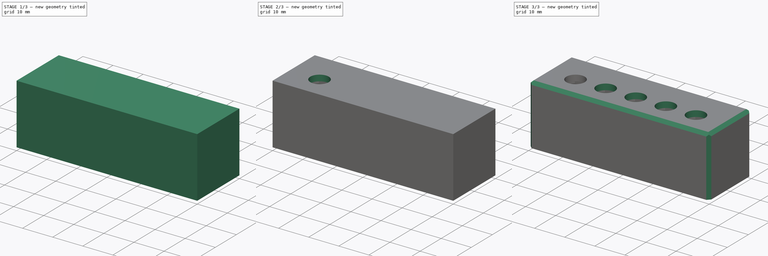
[diagram: build sequence overview — one tinted view per stage of 3, left to right]
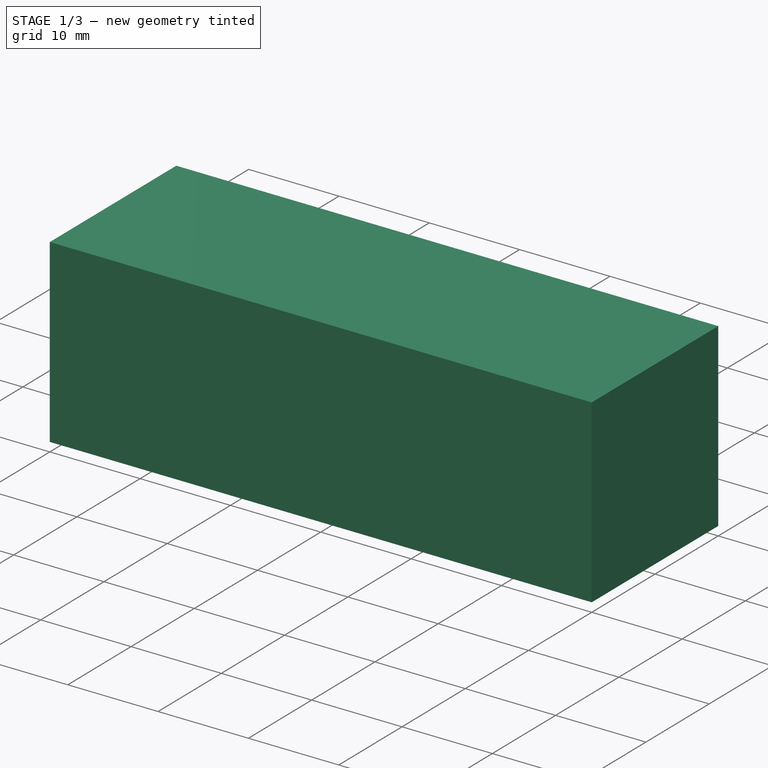
[diagram: stage 1 of 3 — iso view after this stage's code; geometry added in this stage tinted green]
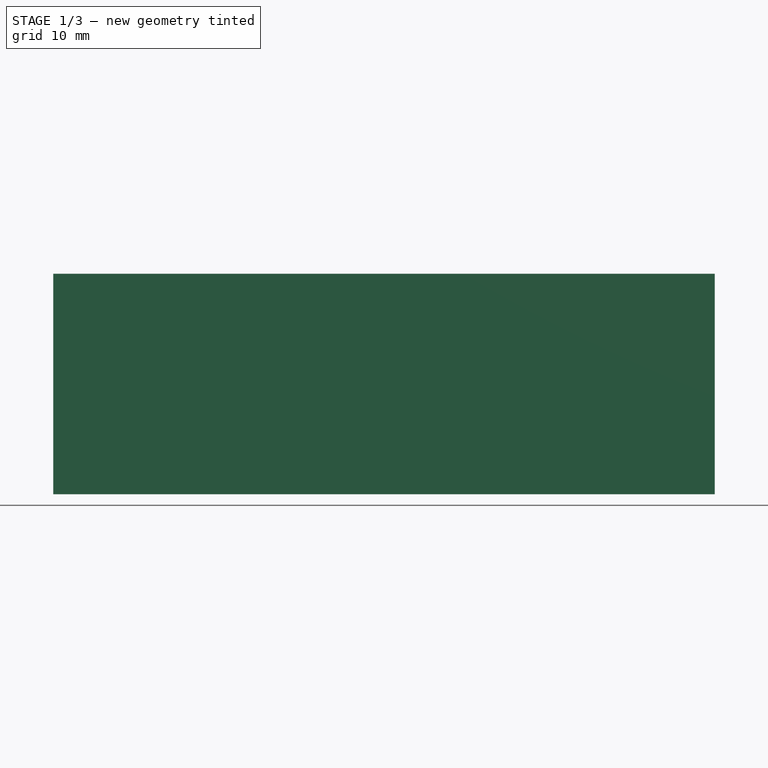
[diagram: stage 1 of 3 — front view after this stage's code; geometry added in this stage tinted green]
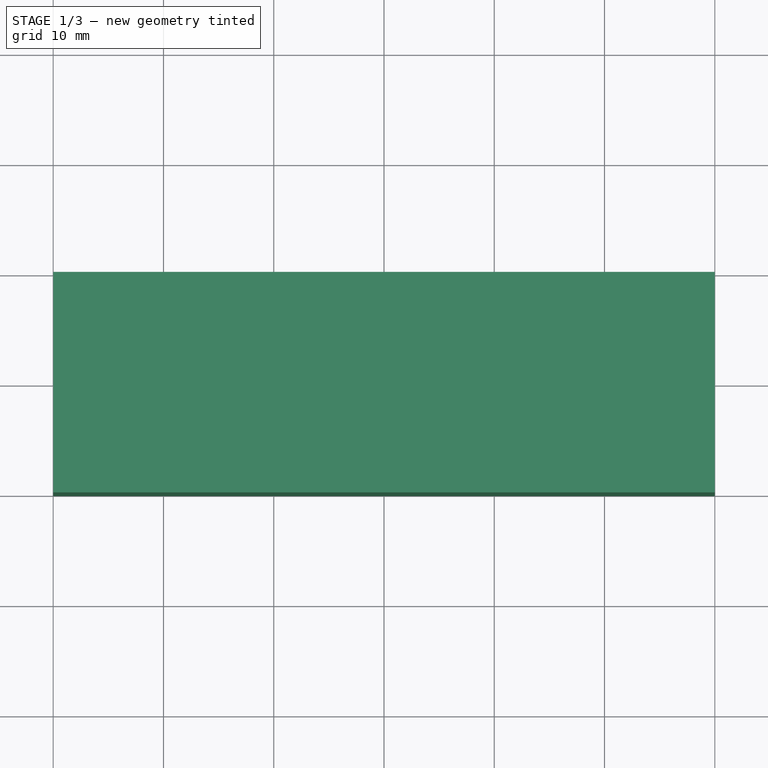
[diagram: stage 1 of 3 — top view after this stage's code; geometry added in this stage tinted green]
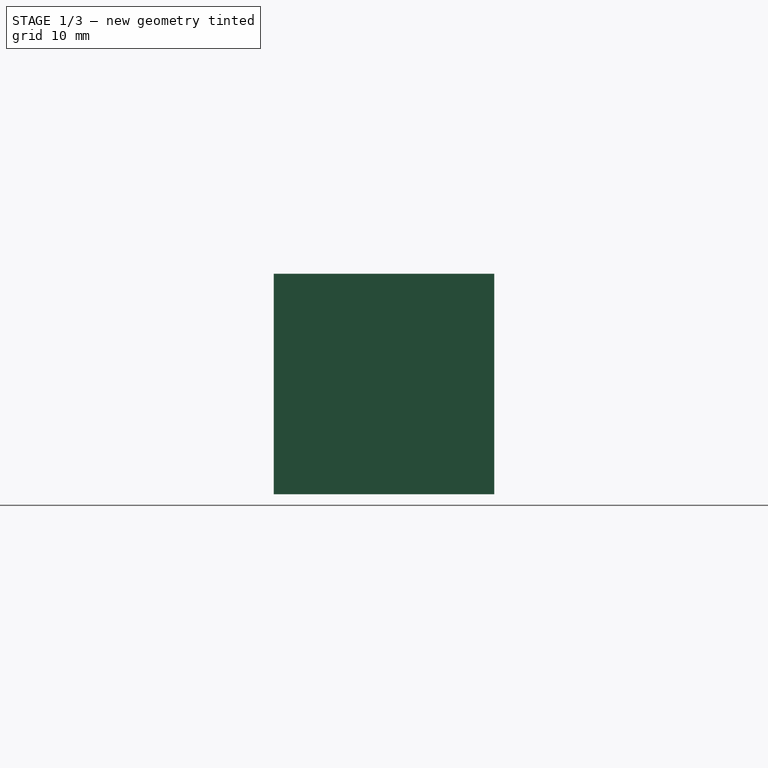
[diagram: stage 1 of 3 — right view after this stage's code; geometry added in this stage tinted green]
FCSTD DOCUMENT  (FreeCAD 0.21R33771 (Git))
Label: probe-jack-connector-bracket
License: All rights reserved
LicenseURL: https://en.wikipedia.org/wiki/All_rights_reserved
objects: Sketcher::SketchObject×5, PartDesign::Pocket×3, PartDesign::LinearPattern×2, PartDesign::Chamfer×2, PartDesign::Pad×1, PartDesign::Body×1, App::Part×1
note: 20 computed .brp shape members not serialized (recipe doc carries the construction recipe); baked Part::Feature solids carry a one-line shape summary decoded from their .brp

FEATURE [Sketcher::SketchObject] Sketch  label="MasterSketch"
  FullyConstrained = true
  MapMode = 5
  Support = -> [XY_Plane001]
  sketch-geometry (17):
    g0: LineSegment StartX=-30 StartY=-10 StartZ=0 EndX=30 EndY=-10 EndZ=0
    g1: LineSegment StartX=30 StartY=-10 StartZ=0 EndX=30 EndY=10 EndZ=0
    g2: LineSegment StartX=30 StartY=10 StartZ=0 EndX=-30 EndY=10 EndZ=0
    g3: LineSegment StartX=-30 StartY=10 StartZ=0 EndX=-30 EndY=-10 EndZ=0
    g4: GeomPoint X=-20 Y=-2 Z=0
    g5: Circle CenterX=-20 CenterY=-2 CenterZ=0 NormalX=0 NormalY=0 NormalZ=1 AngleXU=0 Radius=3
    g6: LineSegment StartX=-24.5 StartY=2.1 StartZ=0 EndX=-15.5 EndY=2.1 EndZ=0
    g7: LineSegment StartX=-15.5 StartY=2.1 StartZ=0 EndX=-15.5 EndY=-8 EndZ=0
    g8: LineSegment StartX=-15.5 StartY=-8 StartZ=0 EndX=-24.5 EndY=-8 EndZ=0
    g9: LineSegment StartX=-24.5 StartY=-8 StartZ=0 EndX=-24.5 EndY=2.1 EndZ=0
    g10: LineSegment StartX=-24.5 StartY=2.1 StartZ=0 EndX=-20 EndY=-2 EndZ=0
    g11: LineSegment StartX=-20 StartY=-2 StartZ=0 EndX=-15.5 EndY=2.1 EndZ=0
    g12: Circle CenterX=-20 CenterY=-2 CenterZ=0 NormalX=0 NormalY=0 NormalZ=1 AngleXU=0 Radius=3.8
    g13: LineSegment StartX=-22.3324 StartY=1 StartZ=0 EndX=-17.6676 EndY=1 EndZ=0
    g14: LineSegment StartX=-22.3324 StartY=-5 StartZ=0 EndX=-17.6676 EndY=-5 EndZ=0
    g15: ArcOfCircle CenterX=-20 CenterY=-2 CenterZ=0 NormalX=0 NormalY=0 NormalZ=1 AngleXU=0 Radius=3.8 StartAngle=2.23164 EndAngle=4.05154
    g16: ArcOfCircle CenterX=-20 CenterY=-2 CenterZ=0 NormalX=0 NormalY=0 NormalZ=1 AngleXU=0 Radius=3.8 StartAngle=5.37323 EndAngle=7.19314
  constraints (47):
    c: Coincident(g0,g1)
    c: Coincident(g1,g2)
    c: Coincident(g2,g3)
    c: Coincident(g3,g0)
    c: Horizontal(g0)
    c: Horizontal(g2)
    c: Vertical(g1)
    c: Vertical(g3)
    c: Symmetric(g0,g1,g-1)
    c: DistanceY(g1,g1) = 20
    c: DistanceX(g0,g0) = 60
    c: Distance(g4,g3) = 10
    c: Coincident(g5,g4)
    c: Diameter(g5) = 6
    c: Coincident(g6,g7)
    c: Coincident(g7,g8)
    c: Coincident(g8,g9)
    c: Coincident(g9,g6)
    c: Horizontal(g6)
    c: Horizontal(g8)
    c: Vertical(g7)
    c: Vertical(g9)
    c: Distance(g5,g6) = 4.1
    c: Distance(g5,g8) = 6
    c: Distance(g8) = 9
    c: Coincident(g10,g6)
    c: Coincident(g10,g5)
    c: Coincident(g11,g5)
    c: Coincident(g11,g6)
    c: Equal(g10,g11)
    c: Distance(g5,g0) = 8
    c: Coincident(g12,g5)
    c: Diameter(g12) = 7.6
    c: Horizontal(g13)
    c: PointOnObject(g13,g12)
    c: PointOnObject(g13,g12)
    c: Tangent(g13,g5)
    c: PointOnObject(g14,g12)
    c: PointOnObject(g14,g12)
    c: Horizontal(g14)
    c: Tangent(g14,g5)
    c: Coincident(g15,g5)
    c: Coincident(g15,g14)
    c: PointOnObject(g15,g13)
    c: Coincident(g16,g5)
    c: Coincident(g16,g14)
    c: PointOnObject(g16,g13)
FEATURE [Sketcher::SketchObject] Sketch001
  ExternalGeometry = -> [Sketch]
  FullyConstrained = true
  MapMode = 5
  Support = -> [XY_Plane001]
  sketch-geometry (4):
    g0: LineSegment StartX=-30 StartY=10 StartZ=0 EndX=30 EndY=10 EndZ=0
    g1: LineSegment StartX=-30 StartY=10 StartZ=0 EndX=-30 EndY=-10 EndZ=0
    g2: LineSegment StartX=-30 StartY=-10 StartZ=0 EndX=30 EndY=-10 EndZ=0
    g3: LineSegment StartX=30 StartY=-10 StartZ=0 EndX=30 EndY=10 EndZ=0
  constraints (8):
    c: Coincident(g0,g-5)
    c: Coincident(g0,g-6)
    c: Coincident(g1,g0)
    c: Coincident(g1,g-5)
    c: Coincident(g2,g1)
    c: Coincident(g2,g-6)
    c: Coincident(g3,g2)
    c: Coincident(g3,g0)
FEATURE [PartDesign::Pad] Pad
  Direction = (0,0,1)
  Length = 20
  Length2 = 10
  Profile = -> Sketch001
  ReferenceAxis = -> Sketch001 [N_Axis]
  Type = 0
FEATURE [Sketcher::SketchObject] Sketch002
  ExternalGeometry = -> [Sketch]
  FullyConstrained = true
  MapMode = 5
  Support = -> [XY_Plane001]
  sketch-geometry (4):
    g0: LineSegment StartX=-25 StartY=8.5 StartZ=0 EndX=25 EndY=8.5 EndZ=0
    g1: LineSegment StartX=25 StartY=8.5 StartZ=0 EndX=25 EndY=-8.5 EndZ=0
    g2: LineSegment StartX=25 StartY=-8.5 StartZ=0 EndX=-25 EndY=-8.5 EndZ=0
    g3: LineSegment StartX=-25 StartY=-8.5 StartZ=0 EndX=-25 EndY=8.5 EndZ=0
  constraints (11):
    c: Coincident(g0,g1)
    c: Coincident(g1,g2)
    c: Coincident(g2,g3)
    c: Coincident(g3,g0)
    c: Horizontal(g0)
    c: Horizontal(g2)
    c: Vertical(g1)
    c: Vertical(g3)
    c: DistanceX(g-5,g0) = 5
    c: Symmetric(g0,g1,g-1)
    c: DistanceY(g-5,g2) = 1.5
FEATURE [PartDesign::Pocket] Pocket
  BaseFeature = -> Pad
  Direction = (0,0,-1)
  Length = 17
  Length2 = 5
  Profile = -> Sketch002
  ReferenceAxis = -> Sketch002 [N_Axis]
  Reversed = true
  Type = 0
FEATURE [Sketcher::SketchObject] Sketch003
  ExternalGeometry = -> [Sketch]
  FullyConstrained = true
  MapMode = 5
  Placement = pos=(0,0,17) rot=(1,0,0;3.14159rad)
  Support = -> [Pocket]
  sketch-geometry (4):
    g0: ArcOfCircle CenterX=-20 CenterY=2 CenterZ=0 NormalX=0 NormalY=0 NormalZ=1 AngleXU=0 Radius=3.90527 StartAngle=2.23502 EndAngle=4.04817
    g1: ArcOfCircle CenterX=-20 CenterY=2 CenterZ=0 NormalX=0 NormalY=0 NormalZ=1 AngleXU=0 Radius=3.90527 StartAngle=5.37661 EndAngle=7.18976
    g2: LineSegment StartX=-22.4074 StartY=5.075 StartZ=0 EndX=-17.5926 EndY=5.075 EndZ=0
    g3: LineSegment StartX=-22.4074 StartY=-1.075 StartZ=0 EndX=-17.5926 EndY=-1.075 EndZ=0
  constraints (12):
    c: Coincident(g0,g-6)
    c: Coincident(g1,g0)
    c: Coincident(g2,g0)
    c: Coincident(g2,g1)
    c: Horizontal(g2)
    c: Coincident(g3,g0)
    c: Coincident(g3,g1)
    c: Horizontal(g3)
    c: DistanceY(g-6,g1) = 0.075
    c: DistanceX(g0,g-4) = 0.075
    c: Equal(g0,g1)
    c: Equal(g3,g2)
FEATURE [PartDesign::Pocket] Pocket001
  BaseFeature = -> Pocket
  Direction = (0,0,1)
  Length = 1
  Length2 = 5
  Profile = -> Sketch003
  ReferenceAxis = -> Sketch003 [N_Axis]
  Type = 0
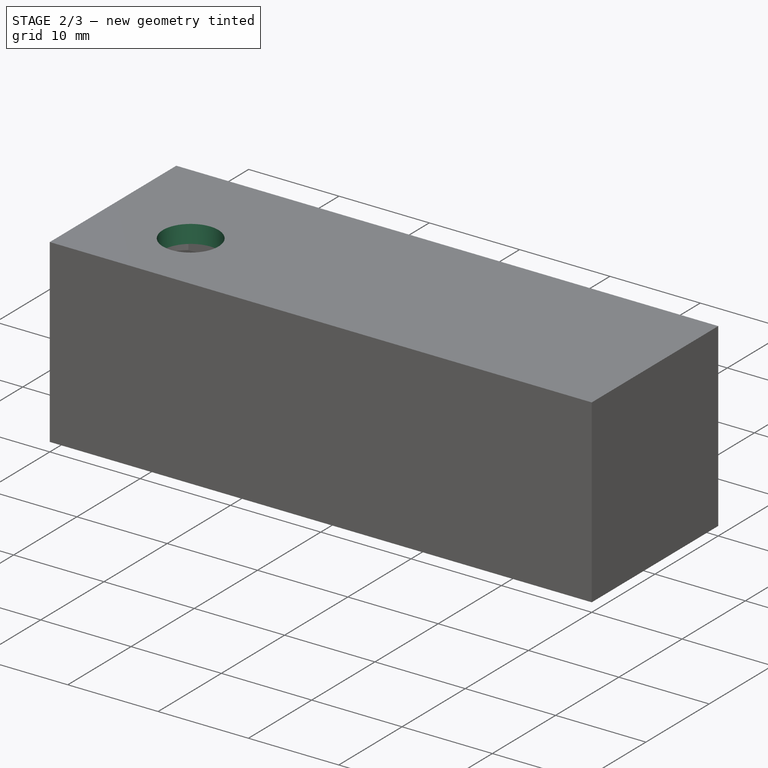
[diagram: stage 2 of 3 — iso view after this stage's code; geometry added in this stage tinted green]
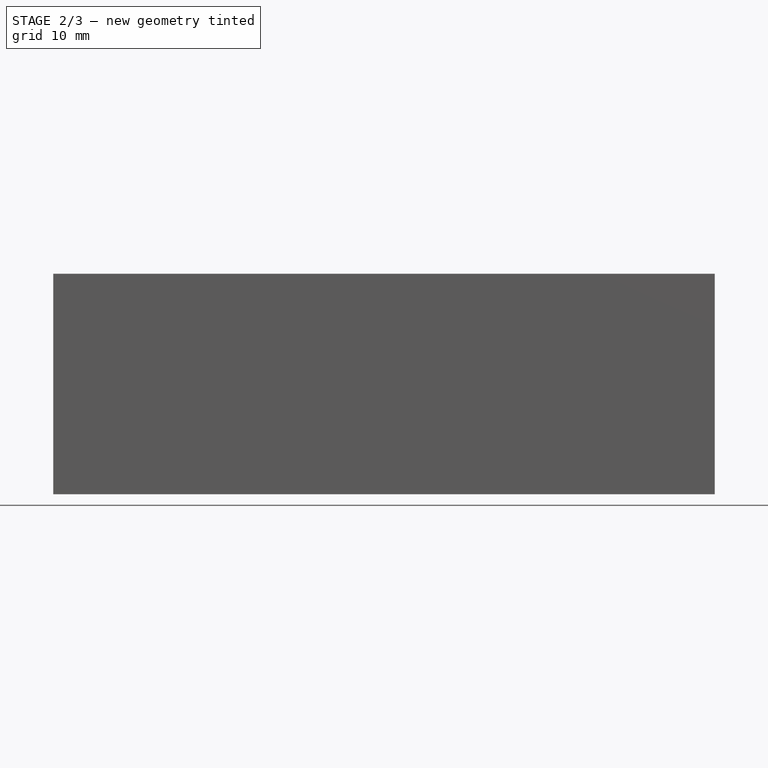
[diagram: stage 2 of 3 — front view after this stage's code; geometry added in this stage tinted green]
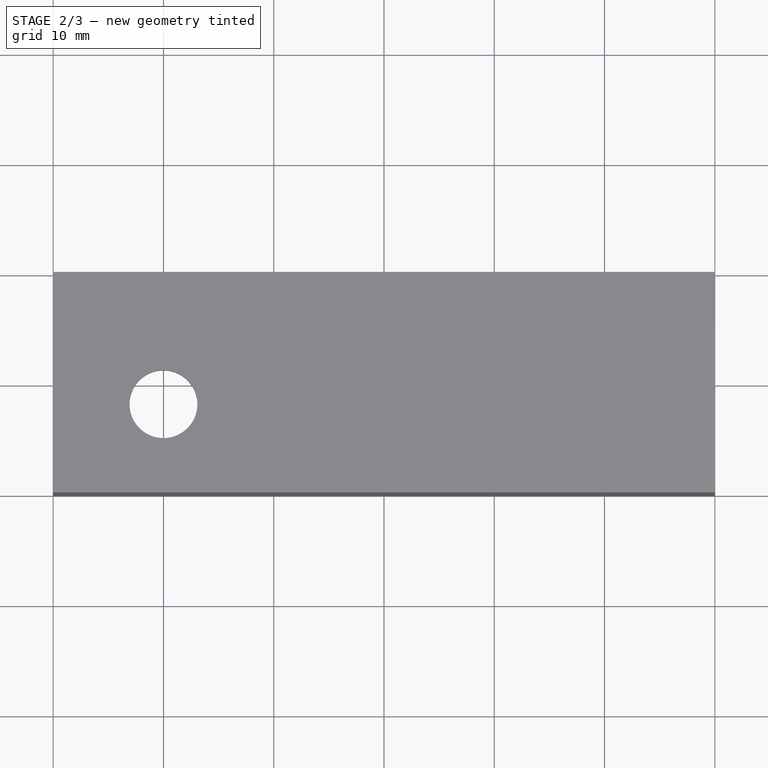
[diagram: stage 2 of 3 — top view after this stage's code; geometry added in this stage tinted green]
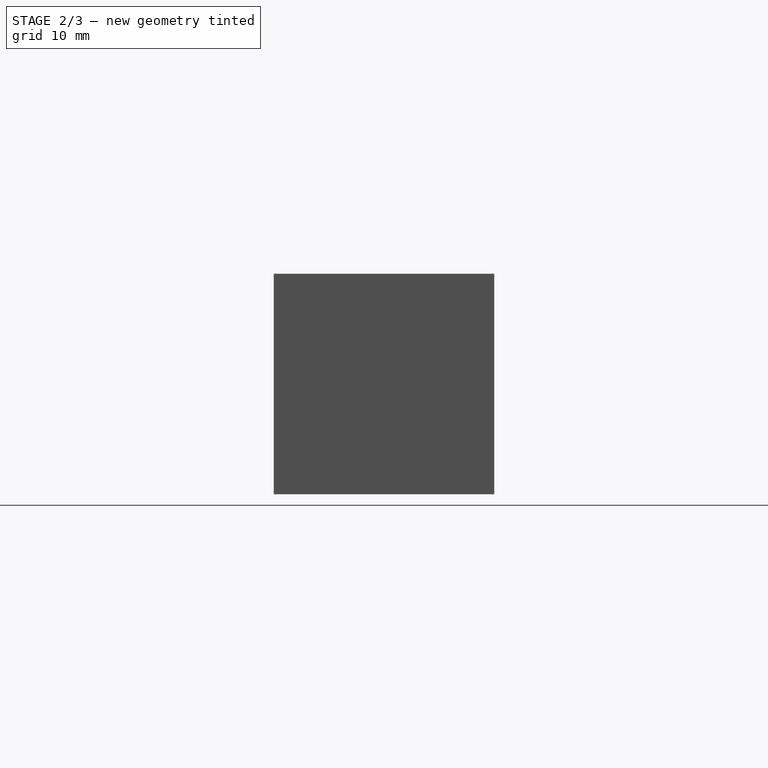
[diagram: stage 2 of 3 — right view after this stage's code; geometry added in this stage tinted green]
FEATURE [Sketcher::SketchObject] Sketch004
  ExternalGeometry = -> [Sketch]
  FullyConstrained = true
  MapMode = 5
  Placement = pos=(0,0,18) rot=(1,0,0;3.14159rad)
  Support = -> [Pocket001]
  sketch-geometry (3):
    g0: Circle CenterX=-20 CenterY=2 CenterZ=0 NormalX=0 NormalY=0 NormalZ=1 AngleXU=0 Radius=3.075
    g1: GeomPoint X=-23.075 Y=2 Z=0
    g2: GeomPoint X=-23 Y=2 Z=0
  constraints (6):
    c: Coincident(g0,g-3)
    c: PointOnObject(g1,g0)
    c: Horizontal(g1,g0)
    c: PointOnObject(g2,g-3)
    c: Horizontal(g2,g0)
    c: DistanceX(g1,g2) = 0.075
FEATURE [PartDesign::LinearPattern] LinearPattern
  BaseFeature = -> Pocket001
  Direction = -> Sketch003 [H_Axis]
  Length = 40
  Occurrences = 5
  Originals = -> [Pocket001]
FEATURE [PartDesign::Pocket] Pocket002
  BaseFeature = -> LinearPattern
  Direction = (0,0,1)
  Length = 5
  Length2 = 5
  Profile = -> Sketch004
  ReferenceAxis = -> Sketch004 [N_Axis]
  Type = 1
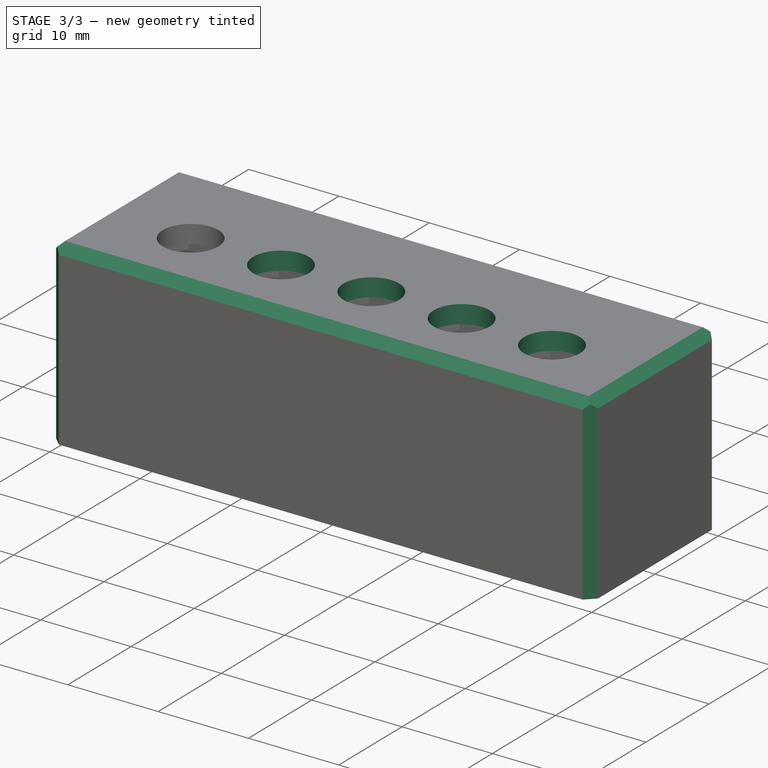
[diagram: stage 3 of 3 — iso view after this stage's code; geometry added in this stage tinted green]
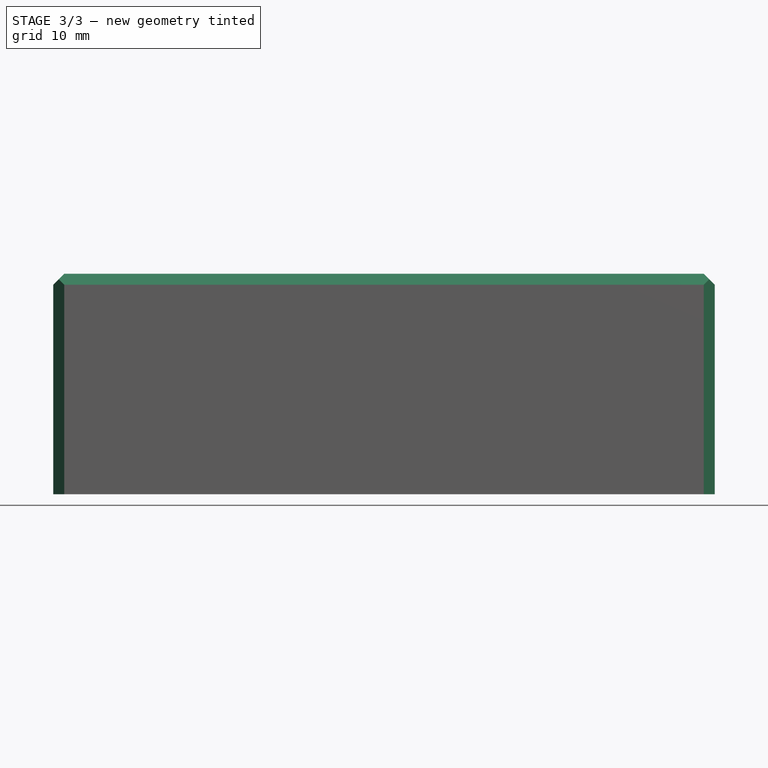
[diagram: stage 3 of 3 — front view after this stage's code; geometry added in this stage tinted green]
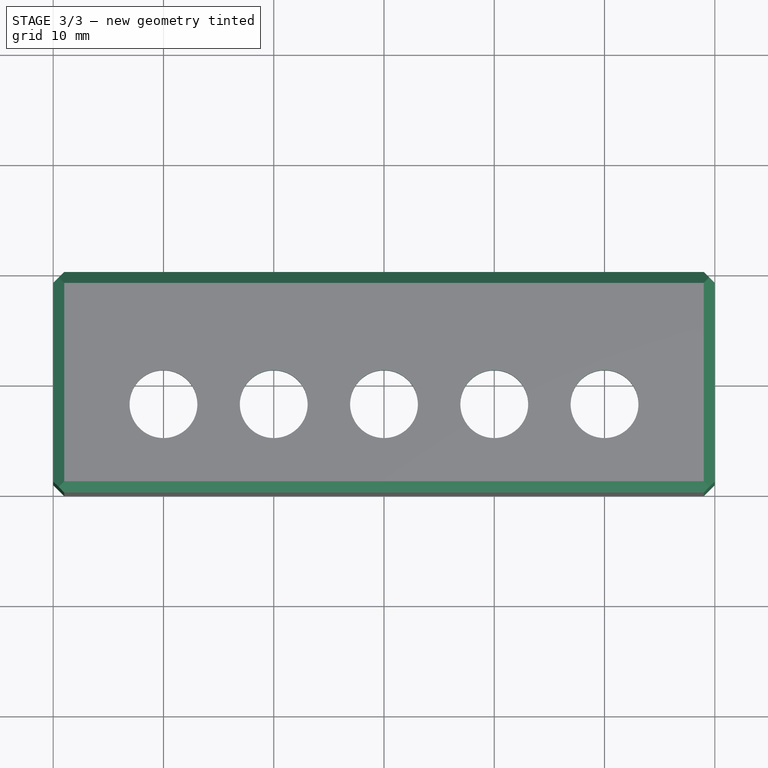
[diagram: stage 3 of 3 — top view after this stage's code; geometry added in this stage tinted green]
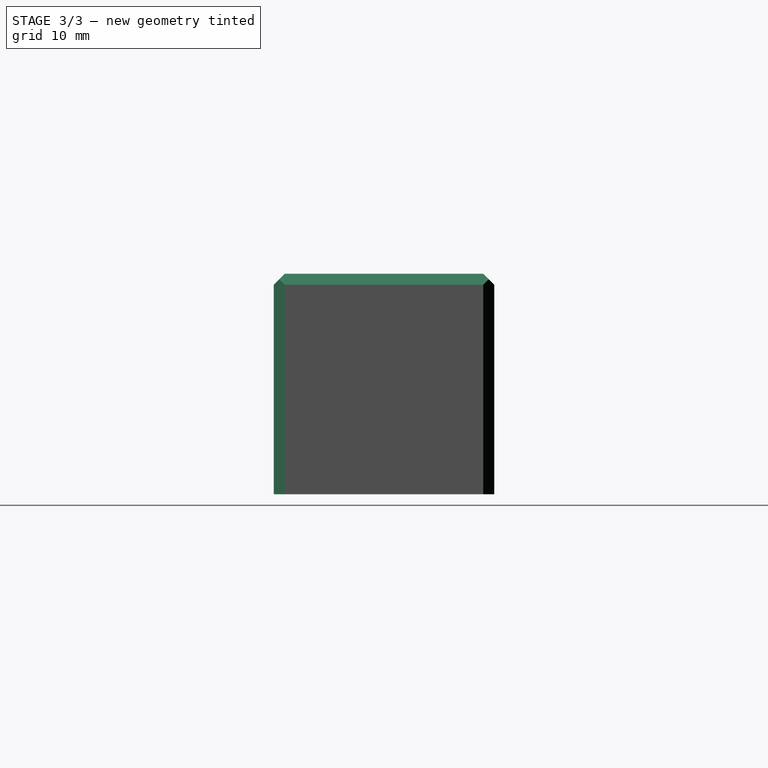
[diagram: stage 3 of 3 — right view after this stage's code; geometry added in this stage tinted green]
FEATURE [PartDesign::LinearPattern] LinearPattern001
  BaseFeature = -> Pocket002
  Direction = -> Sketch004 [H_Axis]
  Length = 40
  Occurrences = 5
  Originals = -> [Pocket002]
FEATURE [PartDesign::Chamfer] Chamfer
  Angle = 45
  Base = -> LinearPattern001 [Edge4,Edge7,Edge16,Edge10]
  BaseFeature = -> LinearPattern001
  ChamferType = 0
  FlipDirection = false
  Size = 1
  Size2 = 1
  SupportTransform = false
  UseAllEdges = false
FEATURE [PartDesign::Chamfer] Chamfer001
  Angle = 45
  Base = -> Chamfer [Edge7,Edge1,Edge17,Edge4]
  BaseFeature = -> Chamfer
  ChamferType = 0
  FlipDirection = false
  Size = 1
  Size2 = 1
  SupportTransform = false
  UseAllEdges = false
FEATURE [PartDesign::Body] Body
  Group = -> [Sketch,Sketch001,Pad,Sketch002,Pocket,Sketch003,Pocket001,Sketch004,LinearPattern,Pocket002,LinearPattern001,Chamfer,Chamfer001]
  Origin = -> Origin001
  Tip = -> Chamfer001
FEATURE [App::Part] Part
  Group = -> [Body]
  Origin = -> Origin
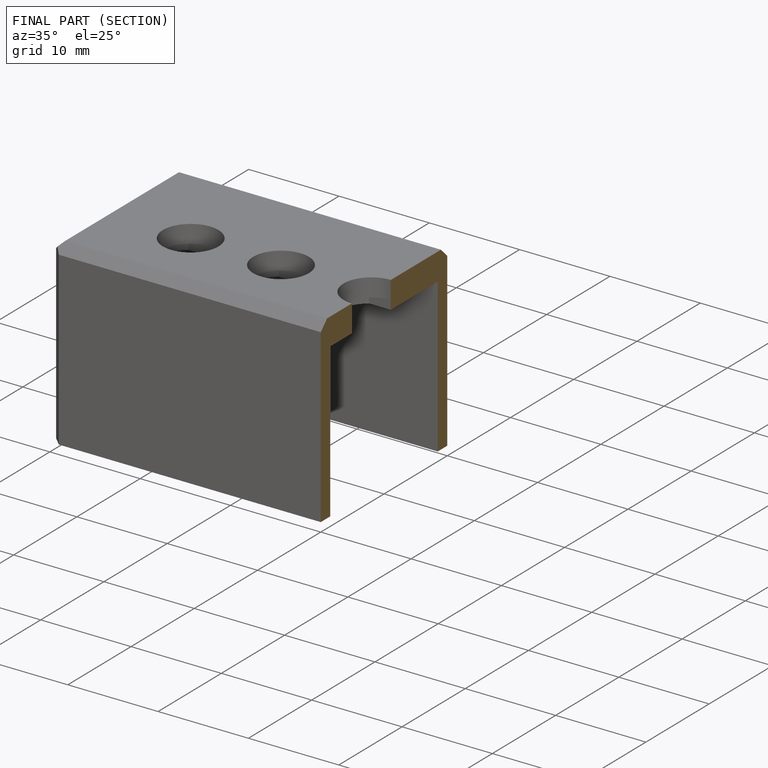
[diagram: finished part — half-section view (interior)]
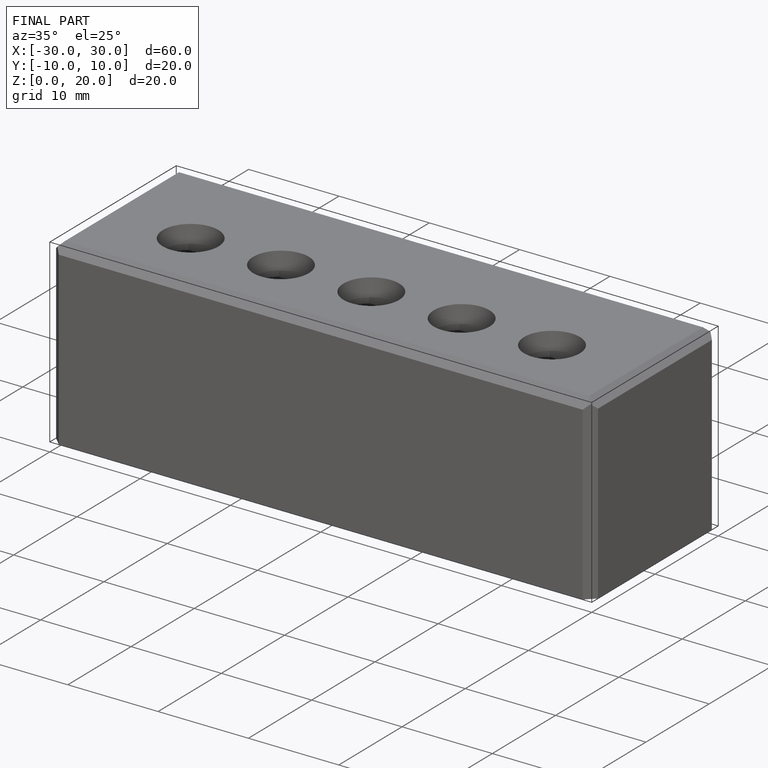
[diagram: finished part — iso view with bounding-box wireframe]
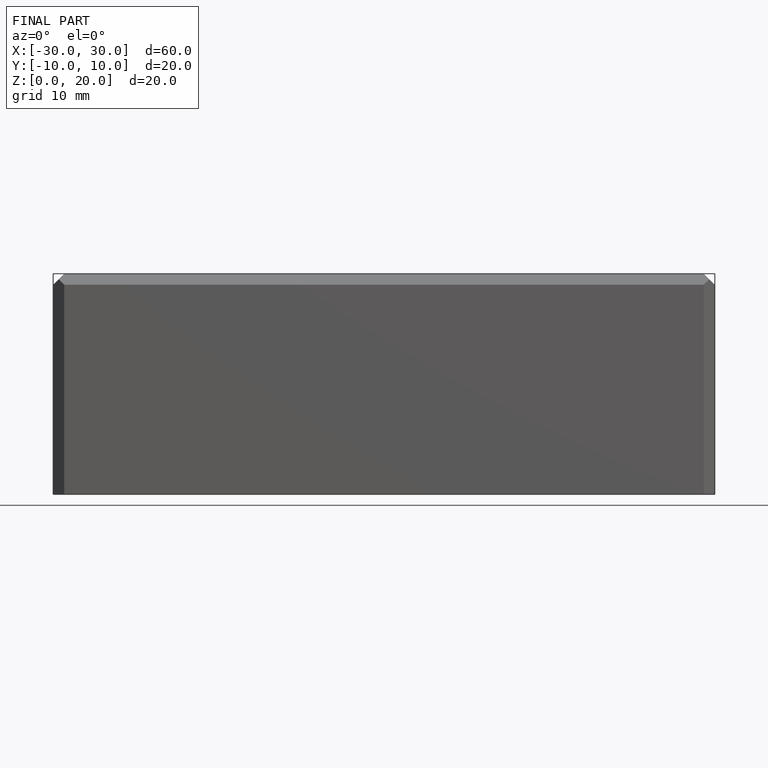
[diagram: finished part — front view with bounding-box wireframe]
